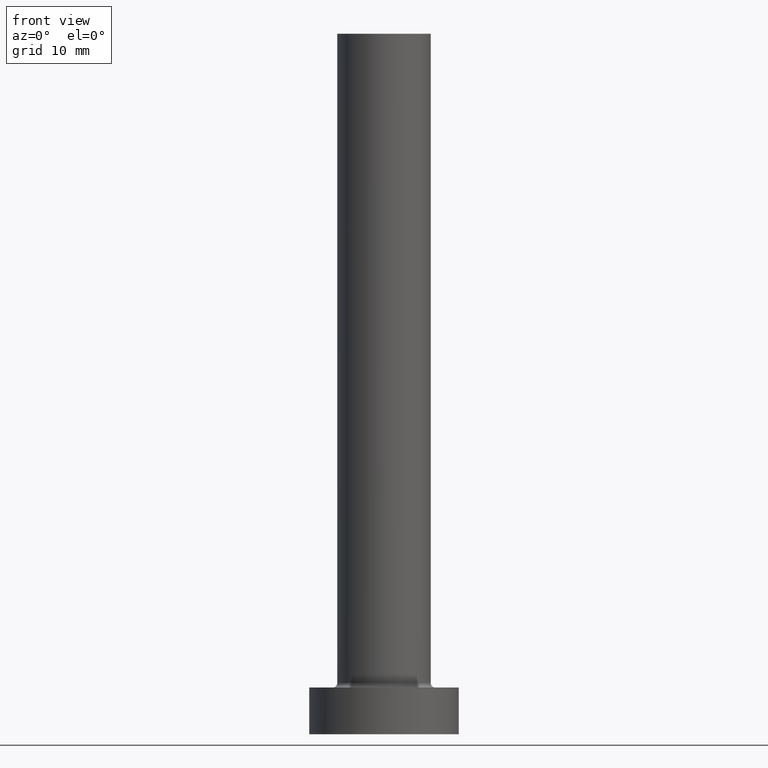
[diagram: clean part render]
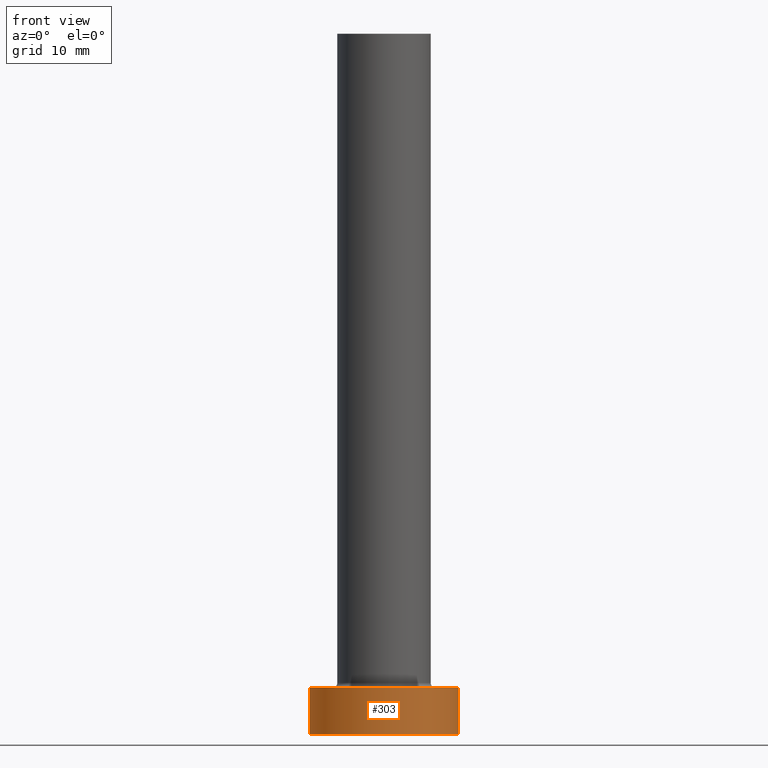
[diagram: same view with one face highlighted and labeled with its STEP entity id]
A machine part, front view. The second image highlights one B-rep face of the part: STEP entity #303.
In plain terms, the highlighted cylindrical surface (partial cylindrical patch) has radius 8 mm, axis along (-0, -0, -1).
Its self-contained STEP definition (entity closure, byte-faithful):
#6 = CARTESIAN_POINT ( 'NONE',  ( 0.000000000000000000, 0.000000000000000000, 5.000000000000000000 ) ) ;
#9 = CARTESIAN_POINT ( 'NONE',  ( 8.000000000000000000, 9.797174393178825657E-16, 5.000000000000000000 ) ) ;
#12 = AXIS2_PLACEMENT_3D ( 'NONE', #6, #69, #395 ) ;
#13 = CIRCLE ( 'NONE', #12, 8.000000000000000000 ) ;
#14 = DIRECTION ( 'NONE',  ( -0.000000000000000000, -0.000000000000000000, -1.000000000000000000 ) ) ;
#25 = VECTOR ( 'NONE', #298, 1000.000000000000000 ) ;
#33 = CARTESIAN_POINT ( 'NONE',  ( 8.000000000000000000, 9.797174393178825657E-16, 0.000000000000000000 ) ) ;
#34 = CARTESIAN_POINT ( 'NONE',  ( 0.000000000000000000, 0.000000000000000000, 0.000000000000000000 ) ) ;
#55 = DIRECTION ( 'NONE',  ( -0.000000000000000000, -0.000000000000000000, -1.000000000000000000 ) ) ;
#62 = VERTEX_POINT ( 'NONE', #401 ) ;
#69 = DIRECTION ( 'NONE',  ( 0.000000000000000000, 0.000000000000000000, 1.000000000000000000 ) ) ;
#83 = LINE ( 'NONE', #9, #25 ) ;
#91 = VECTOR ( 'NONE', #14, 1000.000000000000000 ) ;
#98 = EDGE_CURVE ( 'NONE', #296, #220, #83, .T. ) ;
#104 = CIRCLE ( 'NONE', #358, 8.000000000000000000 ) ;
#114 = ORIENTED_EDGE ( 'NONE', *, *, #233, .F. ) ;
#118 = AXIS2_PLACEMENT_3D ( 'NONE', #426, #55, #299 ) ;
#154 = ORIENTED_EDGE ( 'NONE', *, *, #259, .T. ) ;
#186 = DIRECTION ( 'NONE',  ( 0.000000000000000000, 0.000000000000000000, 1.000000000000000000 ) ) ;
#189 = ORIENTED_EDGE ( 'NONE', *, *, #98, .F. ) ;
#193 = LINE ( 'NONE', #323, #91 ) ;
#219 = FACE_OUTER_BOUND ( 'NONE', #348, .T. ) ;
#220 = VERTEX_POINT ( 'NONE', #33 ) ;
#221 = DIRECTION ( 'NONE',  ( 1.000000000000000000, 0.000000000000000000, 0.000000000000000000 ) ) ;
#233 = EDGE_CURVE ( 'NONE', #281, #296, #13, .T. ) ;
#259 = EDGE_CURVE ( 'NONE', #62, #220, #104, .T. ) ;
#281 = VERTEX_POINT ( 'NONE', #354 ) ;
#296 = VERTEX_POINT ( 'NONE', #423 ) ;
#298 = DIRECTION ( 'NONE',  ( -0.000000000000000000, -0.000000000000000000, -1.000000000000000000 ) ) ;
#299 = DIRECTION ( 'NONE',  ( -1.000000000000000000, 0.000000000000000000, 0.000000000000000000 ) ) ;
#303 = ADVANCED_FACE ( 'NONE', ( #219 ), #359, .T. ) ;
#323 = CARTESIAN_POINT ( 'NONE',  ( -8.000000000000000000, 0.000000000000000000, 5.000000000000000000 ) ) ;
#348 = EDGE_LOOP ( 'NONE', ( #189, #114, #436, #154 ) ) ;
#354 = CARTESIAN_POINT ( 'NONE',  ( -8.000000000000000000, 0.000000000000000000, 5.000000000000000000 ) ) ;
#358 = AXIS2_PLACEMENT_3D ( 'NONE', #34, #186, #221 ) ;
#359 = CYLINDRICAL_SURFACE ( 'NONE', #118, 8.000000000000000000 ) ;
#395 = DIRECTION ( 'NONE',  ( 1.000000000000000000, 0.000000000000000000, 0.000000000000000000 ) ) ;
#401 = CARTESIAN_POINT ( 'NONE',  ( -8.000000000000000000, 0.000000000000000000, 0.000000000000000000 ) ) ;
#423 = CARTESIAN_POINT ( 'NONE',  ( 8.000000000000000000, 9.797174393178825657E-16, 5.000000000000000000 ) ) ;
#426 = CARTESIAN_POINT ( 'NONE',  ( 0.000000000000000000, 0.000000000000000000, 5.000000000000000000 ) ) ;
#433 = EDGE_CURVE ( 'NONE', #281, #62, #193, .T. ) ;
#436 = ORIENTED_EDGE ( 'NONE', *, *, #433, .T. ) ;